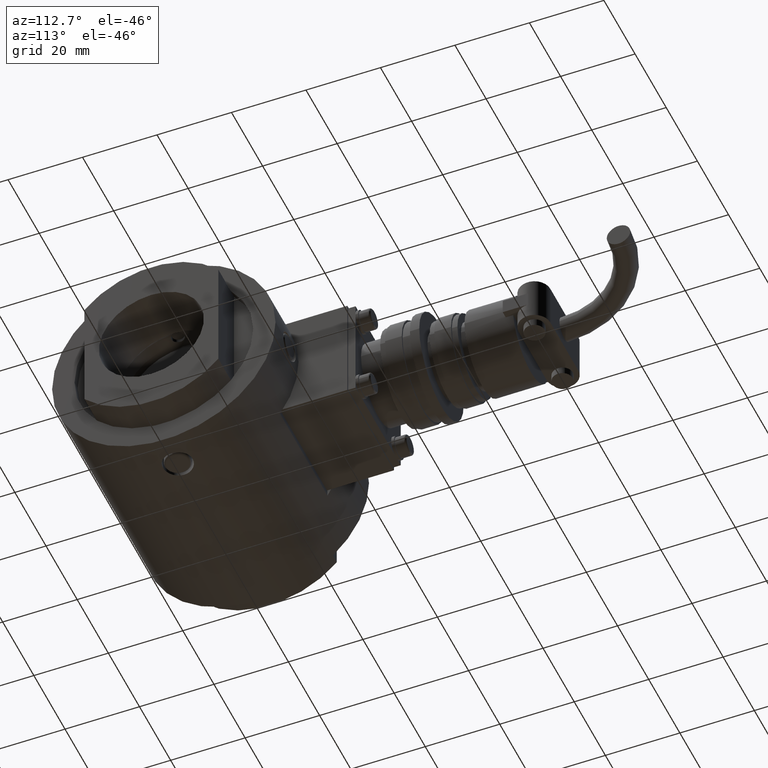
[diagram: clean part render]
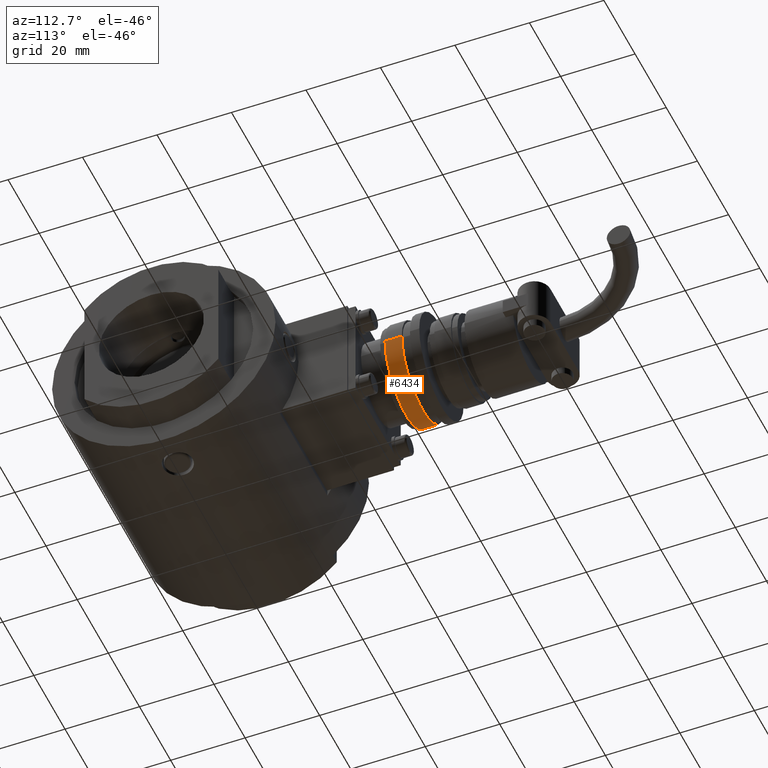
[diagram: same view with one face highlighted and labeled with its STEP entity id]
A machine part, auxiliary view. The second image highlights one B-rep face of the part: STEP entity #6434.
In plain terms, the highlighted cylindrical surface (partial cylindrical patch) has radius 13.5 mm, axis along (-0, -1, 0).
Its self-contained STEP definition (entity closure, byte-faithful):
#6393=CARTESIAN_POINT('',(-11.775000000000148,19.000000000000057,0.0));
#6394=DIRECTION('',(-1.224606E-016,1.0,0.0));
#6395=DIRECTION('',(-1.0,0.0,0.0));
#6396=AXIS2_PLACEMENT_3D('',#6393,#6394,#6395);
#6397=CYLINDRICAL_SURFACE('',#6396,13.499999999999972);
#6398=CARTESIAN_POINT('',(-25.275000000000119,21.250000000000057,0.0));
#6399=VERTEX_POINT('',#6398);
#6400=CARTESIAN_POINT('',(-25.275000000000119,16.750000000000057,0.0));
#6401=VERTEX_POINT('',#6400);
#6402=CARTESIAN_POINT('',(-25.275000000000119,21.250000000000057,0.0));
#6403=DIRECTION('',(0.0,-1.0,0.0));
#6404=VECTOR('',#6403,4.500000000000000);
#6405=LINE('',#6402,#6404);
#6406=EDGE_CURVE('',#6399,#6401,#6405,.T.);
#6407=ORIENTED_EDGE('',*,*,#6406,.F.);
#6408=CARTESIAN_POINT('',(1.724999999999824,21.250000000000057,-1.653219E-015));
#6409=VERTEX_POINT('',#6408);
#6410=CARTESIAN_POINT('',(-11.775000000000148,21.250000000000057,0.0));
#6411=DIRECTION('',(0.0,1.0,0.0));
#6412=DIRECTION('',(-1.0,0.0,0.0));
#6413=AXIS2_PLACEMENT_3D('',#6410,#6411,#6412);
#6414=CIRCLE('',#6413,13.499999999999972);
#6415=EDGE_CURVE('',#6409,#6399,#6414,.T.);
#6416=ORIENTED_EDGE('',*,*,#6415,.F.);
#6417=CARTESIAN_POINT('',(1.724999999999824,16.750000000000057,-1.653219E-015));
#6418=VERTEX_POINT('',#6417);
#6419=CARTESIAN_POINT('',(1.724999999999824,21.250000000000057,-1.653219E-015));
#6420=DIRECTION('',(0.0,-1.0,0.0));
#6421=VECTOR('',#6420,4.500000000000000);
#6422=LINE('',#6419,#6421);
#6423=EDGE_CURVE('',#6409,#6418,#6422,.T.);
#6424=ORIENTED_EDGE('',*,*,#6423,.T.);
#6425=CARTESIAN_POINT('',(-11.775000000000148,16.750000000000057,0.0));
#6426=DIRECTION('',(0.0,1.0,0.0));
#6427=DIRECTION('',(-1.0,0.0,0.0));
#6428=AXIS2_PLACEMENT_3D('',#6425,#6426,#6427);
#6429=CIRCLE('',#6428,13.499999999999972);
#6430=EDGE_CURVE('',#6418,#6401,#6429,.T.);
#6431=ORIENTED_EDGE('',*,*,#6430,.T.);
#6432=EDGE_LOOP('',(#6407,#6416,#6424,#6431));
#6433=FACE_OUTER_BOUND('',#6432,.T.);
#6434=ADVANCED_FACE('',(#6433),#6397,.T.);